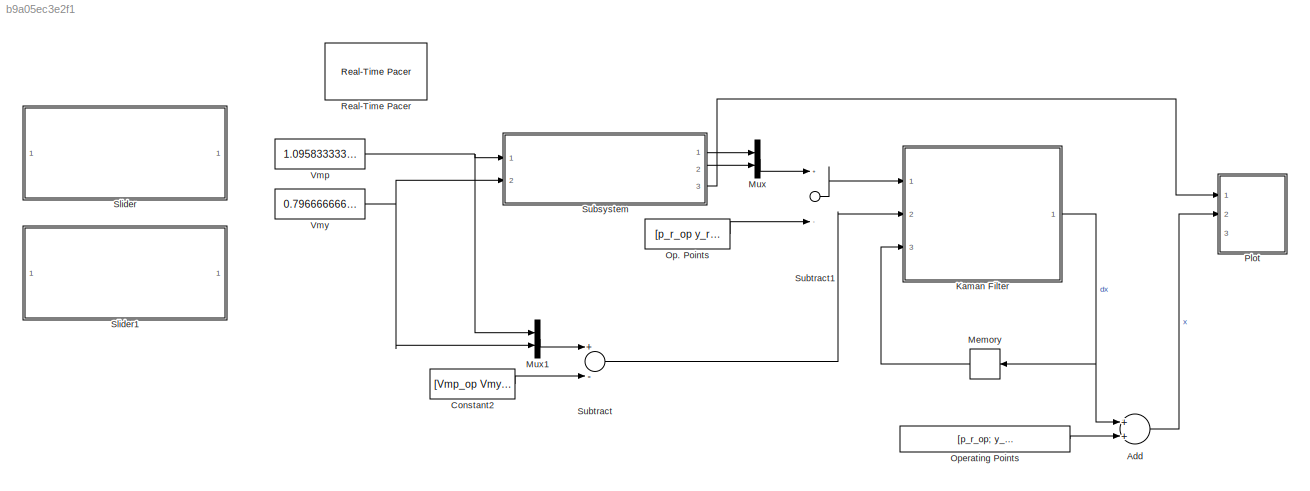
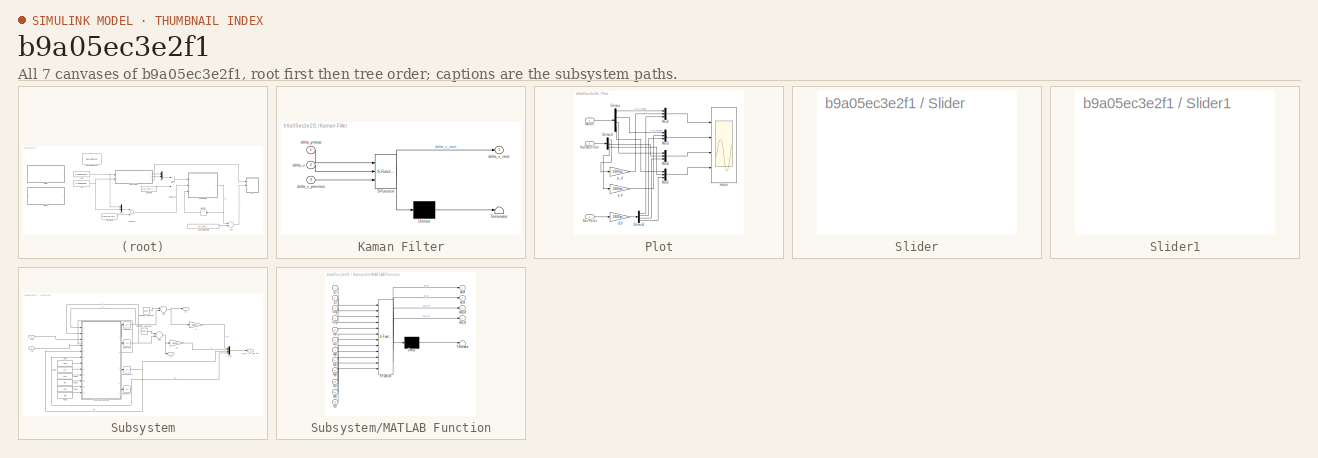
[diagram: thumbnail index - all 7 canvases of the model, root first then tree order]
MODEL slx_b9a05ec3e2f1
KIND model
CONFIG AbsTol = auto
CONFIG EnableMultiTasking = off
CONFIG FixedStep = auto
CONFIG MaxStep = auto
CONFIG MinStep = auto
CONFIG RelTol = 1e-3
CONFIG SampleTimeConstraint = Unconstrained
CONFIG Solver = VariableStepAuto
CONFIG SolverName = VariableStepAuto
CONFIG StartTime = 0.0
CONFIG StopTime = inf
BLOCK [Sum] Add
  InputSameDT = off
  OutDataTypeStr = Inherit: Inherit via internal rule
  Ports = [2, 1]
  SaturateOnIntegerOverflow = off
BLOCK [Constant] Constant2
  Value = [Vmp_op Vmy_op]
BLOCK [SubSystem] Kaman Filter
  ErrorFcn = Stateflow.Translate.translate
  PermitHierarchicalResolution = ExplicitOnly
  Ports = [3, 1]
  RequestExecContextInheritance = off
  SFBlockType = MATLAB Function
  TreatAsAtomicUnit = on
BLOCK [Demux] Kaman Filter/ Demux 
  Outputs = 1
  Ports = [1, 1]
BLOCK [S-Function] Kaman Filter/ SFunction 
  EnableBusSupport = on
  FunctionName = sf_sfun
  Parameters = Ad,Bd,Cd,K
  PortCounts = [3 2]
  Ports = [3, 2]
  SFcnIsStateOwnerBlock = off
  SFunctionDeploymentMode = off
  Tag = Stateflow S-Function Helicopter_Kalman_filter 1
BLOCK [Terminator] Kaman Filter/ Terminator 
BLOCK [Inport] Kaman Filter/delta_u
  IconDisplay = Port number
  Port = 2
BLOCK [Outport] Kaman Filter/delta_x_next
  IconDisplay = Port number
BLOCK [Inport] Kaman Filter/delta_x_previous
  IconDisplay = Port number
  Port = 3
BLOCK [Inport] Kaman Filter/delta_ymeas
  IconDisplay = Port number
BLOCK [Memory] Memory
  InitialCondition = [0;0;0;0]
BLOCK [Mux] Mux
  DisplayOption = bar
  Inputs = 2
  Ports = [2, 1]
BLOCK [Mux] Mux1
  DisplayOption = bar
  Inputs = 2
  Ports = [2, 1]
BLOCK [Constant] Op. Points
  Value = [p_r_op y_r_op]
BLOCK [Constant] Operating Points
  Value = [p_r_op; y_r_op; wp_op; wy_op]
BLOCK [SubSystem] Plot
  Ports = [3]
  RequestExecContextInheritance = off
BLOCK [Demux] Plot/Demux
  DisplayOption = bar
  Ports = [1, 4]
BLOCK [Demux] Plot/Demux1
  DisplayOption = bar
  Ports = [1, 4]
BLOCK [Demux] Plot/Demux2
  DisplayOption = bar
  Ports = [1, 4]
BLOCK [Inport] Plot/KalmanFilter
  IconDisplay = Port number
  Port = 2
BLOCK [Inport] Plot/Model
  IconDisplay = Port number
BLOCK [Mux] Plot/Mux2
  DisplayOption = bar
  Inputs = 3
  Ports = [3, 1]
BLOCK [Mux] Plot/Mux3
  DisplayOption = bar
  Inputs = 3
  Ports = [3, 1]
BLOCK [Mux] Plot/Mux4
  DisplayOption = bar
  Inputs = 3
  Ports = [3, 1]
BLOCK [Mux] Plot/Mux5
  DisplayOption = bar
  Inputs = 3
  Ports = [3, 1]
BLOCK [Scope] Plot/Scope
  Floating = off
  NumInputPorts = 4
  Ports = [4]
  ScopeSpecificationString = Simulink.scopes.TimeScopeBlockCfg('CurrentConfiguration', extmgr.ConfigurationSet(extmgr.Configuration('Core','General UI',true,'FigureColor',[1 1 1]),extmgr.Configuration('Core','Source UI',true),extmgr.Configuration('Sources','WiredSimulink',true,'DataLoggingVariableName','ScopeData1'),extmgr.Configuration('Visuals','Time Domain',true,'SerializedDisplays',{struct('MinYLimReal','-50','MaxYLimReal...<+4615ch>
BLOCK [Inport] Plot/Set Point
  IconDisplay = Port number
  Port = 3
BLOCK [Gain] Plot/p_d
  Gain = 180/pi
  OutDataTypeStr = Inherit: Inherit via internal rule
  ParamDataTypeStr = Inherit: Inherit via internal rule
  SaturateOnIntegerOverflow = off
BLOCK [Gain] Plot/r2d
  Gain = 180/pi
  OutDataTypeStr = Inherit: Inherit via internal rule
  ParamDataTypeStr = Inherit: Inherit via internal rule
  SaturateOnIntegerOverflow = off
BLOCK [Gain] Plot/y_d
  Gain = 180/pi
  OutDataTypeStr = Inherit: Inherit via internal rule
  ParamDataTypeStr = Inherit: Inherit via internal rule
  SaturateOnIntegerOverflow = off
BLOCK [Reference] Real-Time Pacer  REF=realtime_pacer_lib/Real-Time Pacer
  Ports = []
  SourceBlock = realtime_pacer_lib/Real-Time Pacer
  SourceType = RealTime_Pacer
BLOCK [SubSystem] Slider
  DialogController = hmiCreateDDGDialog
  IsWebBlock = on
  MaskHideContents = on
  Ports = []
  RequestExecContextInheritance = off
BLOCK [SubSystem] Slider1
  DialogController = hmiCreateDDGDialog
  IsWebBlock = on
  MaskHideContents = on
  Ports = []
  RequestExecContextInheritance = off
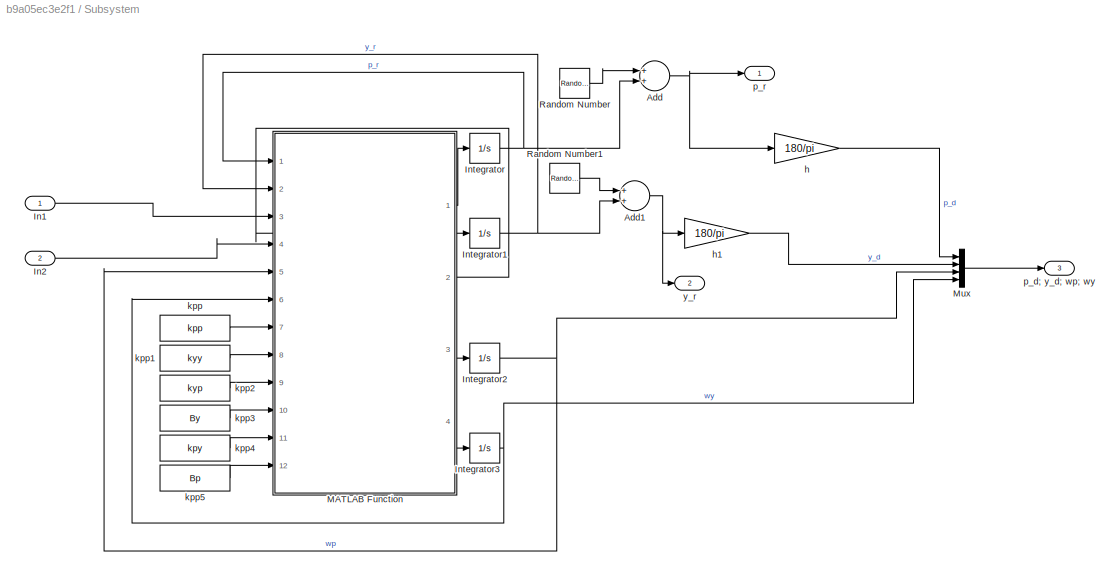
BLOCK [SubSystem] Subsystem
  Ports = [2, 3]
  RequestExecContextInheritance = off
BLOCK [Sum] Subsystem/Add
  InputSameDT = off
  OutDataTypeStr = Inherit: Inherit via internal rule
  Ports = [2, 1]
  SaturateOnIntegerOverflow = off
BLOCK [Sum] Subsystem/Add1
  InputSameDT = off
  OutDataTypeStr = Inherit: Inherit via internal rule
  Ports = [2, 1]
  SaturateOnIntegerOverflow = off
BLOCK [Inport] Subsystem/In1
  IconDisplay = Port number
BLOCK [Inport] Subsystem/In2
  IconDisplay = Port number
  Port = 2
BLOCK [Integrator] Subsystem/Integrator
  InitialCondition = (p_r_op)
  LimitOutput = on
  LowerSaturationLimit = -pi/4
  Ports = [1, 1]
  UpperSaturationLimit = pi/4
BLOCK [Integrator] Subsystem/Integrator1
  InitialCondition = (y_r_op)
  LimitOutput = on
  LowerSaturationLimit = 0
  Ports = [1, 1]
  UpperSaturationLimit = pi
BLOCK [Integrator] Subsystem/Integrator2
  LowerSaturationLimit = -1
  Ports = [1, 1]
  UpperSaturationLimit = 1
BLOCK [Integrator] Subsystem/Integrator3
  Ports = [1, 1]
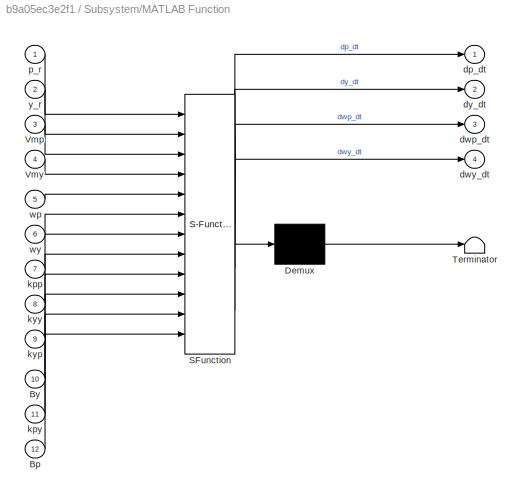
BLOCK [SubSystem] Subsystem/MATLAB Function
  ErrorFcn = Stateflow.Translate.translate
  PermitHierarchicalResolution = ExplicitOnly
  Ports = [12, 4]
  RequestExecContextInheritance = off
  SFBlockType = MATLAB Function
  TreatAsAtomicUnit = on
BLOCK [Demux] Subsystem/MATLAB Function/ Demux 
  Outputs = 1
  Ports = [1, 1]
BLOCK [S-Function] Subsystem/MATLAB Function/ SFunction 
  EnableBusSupport = on
  FunctionName = sf_sfun
  Parameters = g,jeqp,jeqy,lcm,mheli
  PortCounts = [12 5]
  Ports = [12, 5]
  SFcnIsStateOwnerBlock = off
  SFunctionDeploymentMode = off
  Tag = Stateflow S-Function Helicopter_Kalman_filter 2
BLOCK [Terminator] Subsystem/MATLAB Function/ Terminator 
BLOCK [Inport] Subsystem/MATLAB Function/Bp
  IconDisplay = Port number
  Port = 12
BLOCK [Inport] Subsystem/MATLAB Function/By
  IconDisplay = Port number
  Port = 10
BLOCK [Inport] Subsystem/MATLAB Function/Vmp
  IconDisplay = Port number
  Port = 3
BLOCK [Inport] Subsystem/MATLAB Function/Vmy
  IconDisplay = Port number
  Port = 4
BLOCK [Outport] Subsystem/MATLAB Function/dp_dt
  IconDisplay = Port number
BLOCK [Outport] Subsystem/MATLAB Function/dwp_dt
  IconDisplay = Port number
  Port = 3
BLOCK [Outport] Subsystem/MATLAB Function/dwy_dt
  IconDisplay = Port number
  Port = 4
BLOCK [Outport] Subsystem/MATLAB Function/dy_dt
  IconDisplay = Port number
  Port = 2
BLOCK [Inport] Subsystem/MATLAB Function/kpp
  IconDisplay = Port number
  Port = 7
BLOCK [Inport] Subsystem/MATLAB Function/kpy
  IconDisplay = Port number
  Port = 11
BLOCK [Inport] Subsystem/MATLAB Function/kyp
  IconDisplay = Port number
  Port = 9
BLOCK [Inport] Subsystem/MATLAB Function/kyy
  IconDisplay = Port number
  Port = 8
BLOCK [Inport] Subsystem/MATLAB Function/p_r
  IconDisplay = Port number
BLOCK [Inport] Subsystem/MATLAB Function/wp
  IconDisplay = Port number
  Port = 5
BLOCK [Inport] Subsystem/MATLAB Function/wy
  IconDisplay = Port number
  Port = 6
BLOCK [Inport] Subsystem/MATLAB Function/y_r
  IconDisplay = Port number
  Port = 2
BLOCK [Mux] Subsystem/Mux
  DisplayOption = bar
  Ports = [4, 1]
BLOCK [RandomNumber] Subsystem/Random Number
  SampleTime = 0.1
  Variance = 0.0005
BLOCK [RandomNumber] Subsystem/Random Number1
  SampleTime = 0.1
  Variance = 0.0005
BLOCK [Gain] Subsystem/h
  Gain = 180/pi
  OutDataTypeStr = Inherit: Inherit via internal rule
  ParamDataTypeStr = Inherit: Inherit via internal rule
  SaturateOnIntegerOverflow = off
BLOCK [Gain] Subsystem/h1
  Gain = 180/pi
  OutDataTypeStr = Inherit: Inherit via internal rule
  ParamDataTypeStr = Inherit: Inherit via internal rule
  SaturateOnIntegerOverflow = off
BLOCK [Constant] Subsystem/kpp
  Value = kpp
BLOCK [Constant] Subsystem/kpp1
  Value = kyy
BLOCK [Constant] Subsystem/kpp2
  Value = kyp
BLOCK [Constant] Subsystem/kpp3
  Value = By
BLOCK [Constant] Subsystem/kpp4
  Value = kpy
BLOCK [Constant] Subsystem/kpp5
  Value = Bp
BLOCK [Outport] Subsystem/p_d; y_d; wp; wy
  IconDisplay = Port number
  Port = 3
BLOCK [Outport] Subsystem/p_r
  IconDisplay = Port number
BLOCK [Outport] Subsystem/y_r
  IconDisplay = Port number
  Port = 2
BLOCK [Sum] Subtract
  InputSameDT = off
  Inputs = +-
  OutDataTypeStr = Inherit: Inherit via internal rule
  Ports = [2, 1]
  SaturateOnIntegerOverflow = off
BLOCK [Sum] Subtract1
  InputSameDT = off
  Inputs = +-
  OutDataTypeStr = Inherit: Inherit via internal rule
  Ports = [2, 1]
  SaturateOnIntegerOverflow = off
BLOCK [Constant] Vmp
  Value = 1.0958333333333
BLOCK [Constant] Vmy
  Value = 0.7966666666667001
LINE Add:1 -> Plot:2
LINE Constant2:1 -> Subtract:2
NET Kaman Filter:1 -> Add:1, Memory:1
LINE Memory:1 -> Kaman Filter:3
LINE Mux1:1 -> Subtract:1
LINE Mux:1 -> Subtract1:1
LINE Op. Points:1 -> Subtract1:2
LINE Operating Points:1 -> Add:2
LINE Plot/Demux1:1 -> Plot/p_d:1
LINE Plot/Demux1:2 -> Plot/y_d:1
LINE Plot/Demux1:3 -> Plot/Mux4:2
LINE Plot/Demux1:4 -> Plot/Mux5:2
LINE Plot/Demux2:1 -> Plot/Mux2:3
LINE Plot/Demux2:2 -> Plot/Mux3:3
LINE Plot/Demux2:3 -> Plot/Mux4:3
LINE Plot/Demux2:4 -> Plot/Mux5:3
LINE Plot/Demux:1 -> Plot/Mux2:1
LINE Plot/Demux:2 -> Plot/Mux3:1
LINE Plot/Demux:3 -> Plot/Mux4:1
LINE Plot/Demux:4 -> Plot/Mux5:1
LINE Plot/KalmanFilter:1 -> Plot/Demux1:1
LINE Plot/Model:1 -> Plot/Demux:1
LINE Plot/Mux2:1 -> Plot/Scope:1
LINE Plot/Mux3:1 -> Plot/Scope:2
LINE Plot/Mux4:1 -> Plot/Scope:3
LINE Plot/Mux5:1 -> Plot/Scope:4
LINE Plot/Set Point:1 -> Plot/r2d:1
LINE Plot/p_d:1 -> Plot/Mux2:2
LINE Plot/r2d:1 -> Plot/Demux2:1
LINE Plot/y_d:1 -> Plot/Mux3:2
NET Subsystem/Add1:1 -> Subsystem/h1:1, Subsystem/y_r:1
NET Subsystem/Add:1 -> Subsystem/h:1, Subsystem/p_r:1
LINE Subsystem/In1:1 -> Subsystem/MATLAB Function:3
LINE Subsystem/In2:1 -> Subsystem/MATLAB Function:4
NET Subsystem/Integrator1:1 -> Subsystem/Add1:2, Subsystem/MATLAB Function:2
NET Subsystem/Integrator2:1 -> Subsystem/MATLAB Function:5, Subsystem/Mux:3
NET Subsystem/Integrator3:1 -> Subsystem/MATLAB Function:6, Subsystem/Mux:4
NET Subsystem/Integrator:1 -> Subsystem/Add:2, Subsystem/MATLAB Function:1
LINE Subsystem/MATLAB Function:1 -> Subsystem/Integrator:1
LINE Subsystem/MATLAB Function:2 -> Subsystem/Integrator1:1
LINE Subsystem/MATLAB Function:3 -> Subsystem/Integrator2:1
LINE Subsystem/MATLAB Function:4 -> Subsystem/Integrator3:1
LINE Subsystem/Mux:1 -> Subsystem/p_d; y_d; wp; wy:1
LINE Subsystem/Random Number1:1 -> Subsystem/Add1:1
LINE Subsystem/Random Number:1 -> Subsystem/Add:1
LINE Subsystem/h1:1 -> Subsystem/Mux:2
LINE Subsystem/h:1 -> Subsystem/Mux:1
LINE Subsystem/kpp1:1 -> Subsystem/MATLAB Function:8
LINE Subsystem/kpp2:1 -> Subsystem/MATLAB Function:9
LINE Subsystem/kpp3:1 -> Subsystem/MATLAB Function:10
LINE Subsystem/kpp4:1 -> Subsystem/MATLAB Function:11
LINE Subsystem/kpp5:1 -> Subsystem/MATLAB Function:12
LINE Subsystem/kpp:1 -> Subsystem/MATLAB Function:7
LINE Subsystem:1 -> Mux:1
LINE Subsystem:2 -> Mux:2
LINE Subsystem:3 -> Plot:1
LINE Subtract1:1 -> Kaman Filter:1
LINE Subtract:1 -> Kaman Filter:2
NET Vmp:1 -> Mux1:1, Subsystem:1
NET Vmy:1 -> Mux1:2, Subsystem:2
note: NET lines group one-source signal fan-out (src -> all destinations, sorted); 1:1 wires keep LINE
CHART Kaman Filter states=1 transitions=1
  STATE_LABEL 'eML_blk_kernel()'
  STATE_LABEL 'SCRIPT:\nfunction delta_x_next = mykalman(delta_ymeas,delta_u,delta_x_previous, K, Ad, Bd, Cd)\n\ndelta_x_next = Ad*delta_x_previous +Bd*delta_u +K*(delta_ymeas -Cd*delta_x_previous);'
CHART Subsystem/MATLAB Function states=1 transitions=1
  STATE_LABEL 'eML_blk_kernel()'
  STATE_LABEL 'SCRIPT:\nfunction [dp_dt, dy_dt, dwp_dt, dwy_dt]= fcn(p_r,y_r,Vmp, Vmy,wp,wy, lcm, mheli, jeqp, jeqy, g, kpp, kyy, kyp, By, kpy, Bp)\n\n  %%Parameters\n%   \n%   Bp,\n%   By,\n%   g,\n%   kpp,\n%   kyp,\n%   kyy,\n%   kpy,\n%   mheli,\n%   lcm,\n%   jeqp,\n%   jeqy,\n  \n\n%%\n   dp_dt = wp;\n   dy_dt = wy;\n   \n   %%\n   dwp_dt_n1 = (kpp*Vmp);\n   dwp_dt_n2 = (kpy*Vmy);\n   dwp_dt_n3 = (Bp*wp+ (mheli*(wy.^2)*sin(p_r)*(l...<+419ch>'
